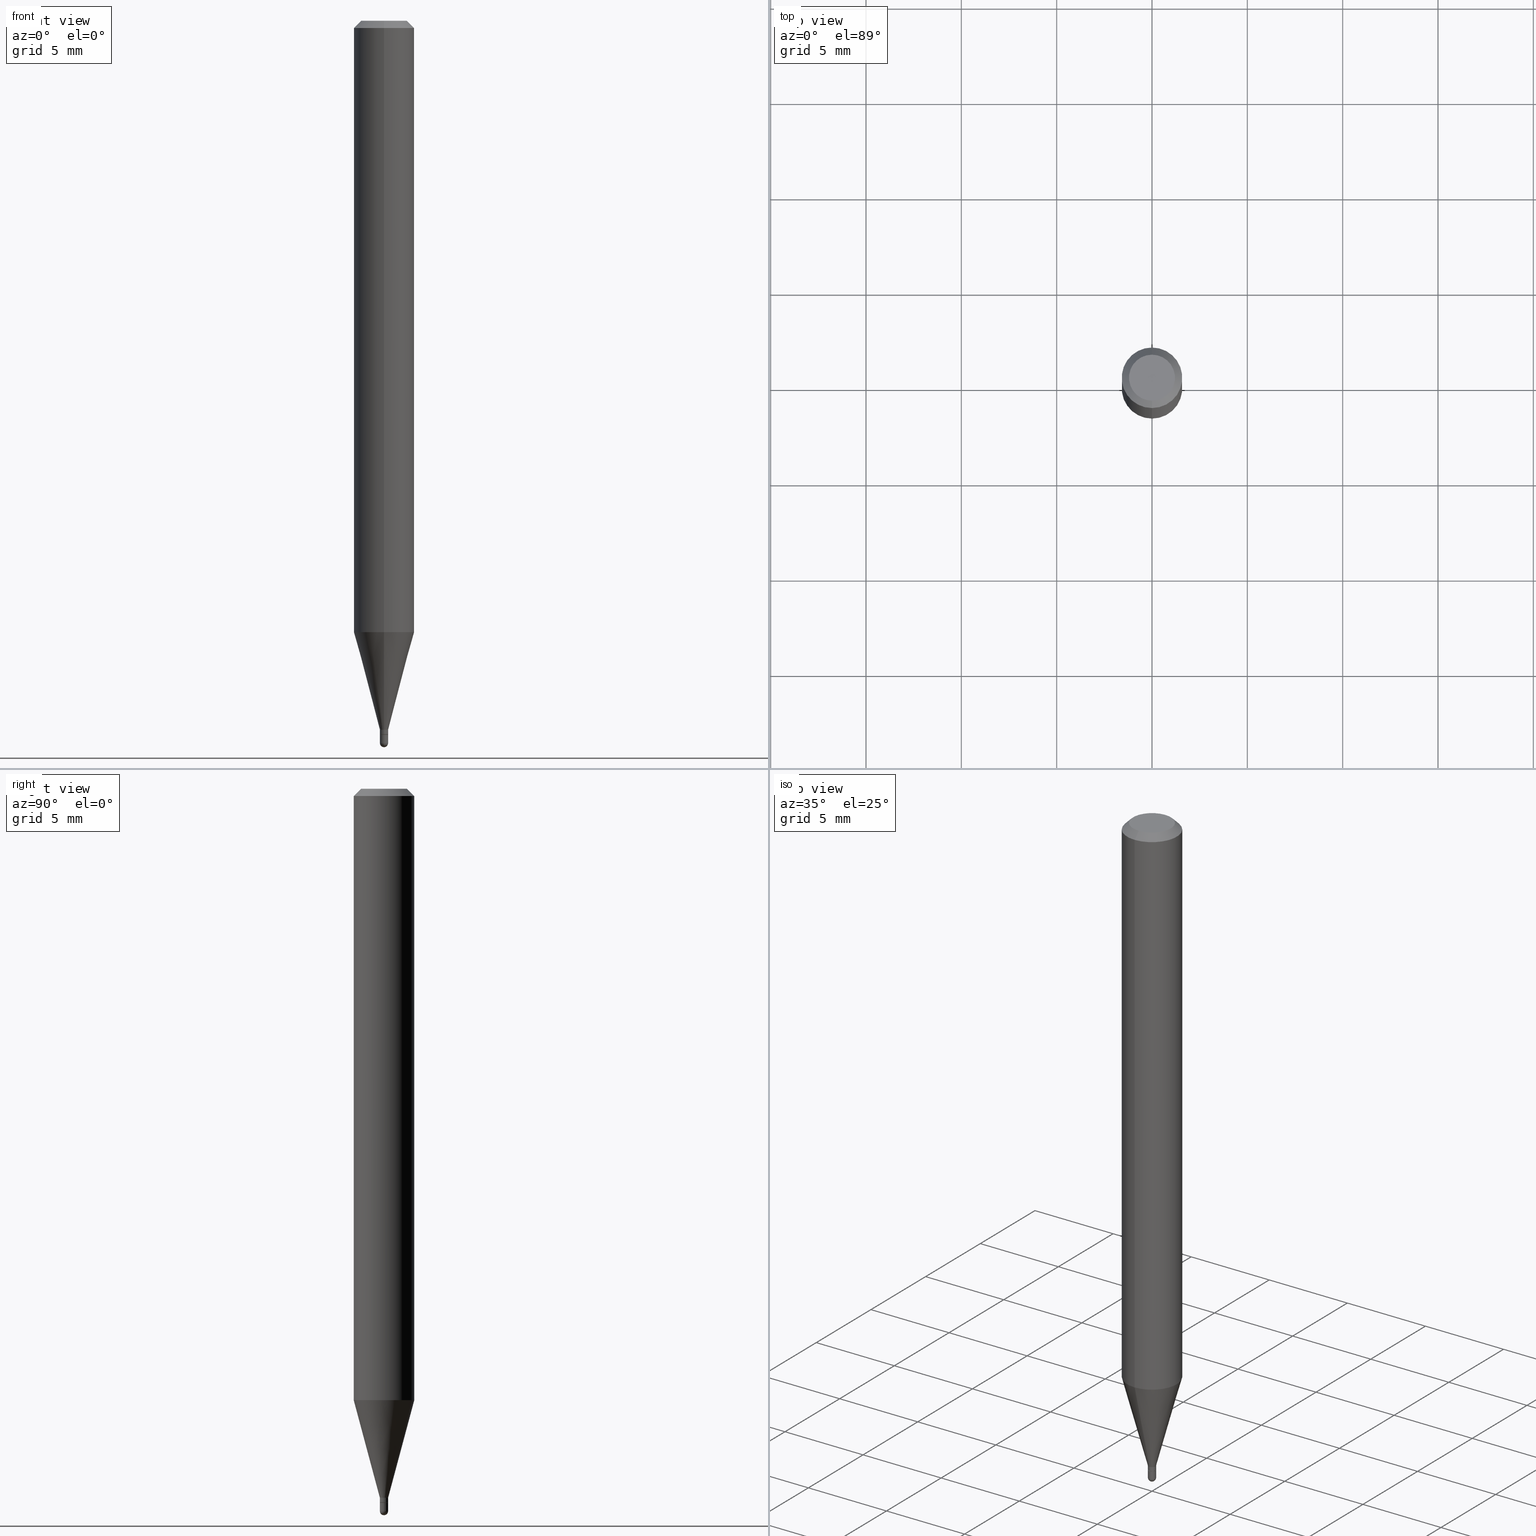
[diagram: canonical four-view strip — front | top / right | iso, engineering-drawing reading convention]
A machine part, canonical four-view strip (front | top / right | iso — engineering-drawing reading convention). The complete STEP part file that produces these views, byte-faithful:
ISO-10303-21;
HEADER;
FILE_DESCRIPTION (( 'STEP AP203' ),
    '1' );
FILE_NAME ('03078.STEP',
    '2024-03-08T18:07:03',
    ( '' ),
    ( '' ),
    'SwSTEP 2.0',
    'SolidWorks 2023',
    '' );
FILE_SCHEMA (( 'CONFIG_CONTROL_DESIGN' ));
ENDSEC;

DATA;
#1 = DIRECTION ( 'NONE',  ( -6.982962677686265133E-15, -1.000000000000000000, 3.491470586945817923E-15 ) ) ;
#2 = CARTESIAN_POINT ( 'NONE',  ( 3.668214471292309505E-31, -5.237205880418643043E-17, -0.01499999999999976179 ) ) ;
#3 = DIRECTION ( 'NONE',  ( -2.445476314194912029E-29, 3.491470586945817923E-15, 1.000000000000000000 ) ) ;
#4 = LOCAL_TIME ( 13, 7, 3.000000000000000000, #294 ) ;
#5 = ORIENTED_EDGE ( 'NONE', *, *, #174, .F. ) ;
#6 = DIRECTION ( 'NONE',  ( 6.982962677686265922E-15, 1.000000000000000000, -3.483106191921935554E-15 ) ) ;
#7 = VERTEX_POINT ( 'NONE', #271 ) ;
#8 = CIRCLE ( 'NONE', #301, 0.008500000000000002345 ) ;
#9 = AXIS2_PLACEMENT_3D ( 'NONE', #436, #85, #240 ) ;
#10 = FACE_OUTER_BOUND ( 'NONE', #99, .T. ) ;
#11 = FACE_OUTER_BOUND ( 'NONE', #129, .T. ) ;
#12 = ORIENTED_EDGE ( 'NONE', *, *, #153, .F. ) ;
#13 = EDGE_CURVE ( 'NONE', #355, #496, #508, .T. ) ;
#14 = DIRECTION ( 'NONE',  ( -6.982962677686265922E-15, -1.000000000000000000, 3.483106191921935554E-15 ) ) ;
#15 = CARTESIAN_POINT ( 'NONE',  ( 3.604632087123300502E-29, -5.146427645158135766E-15, -1.474000000000000199 ) ) ;
#16 = VECTOR ( 'NONE', #409, 39.37007874015748143 ) ;
#17 = CONICAL_SURFACE ( 'NONE', #493, 0.06250000000000000000, 0.7853981633974483900 ) ;
#18 = DIRECTION ( 'NONE',  ( 1.000000000000000000, -6.982962677686265922E-15, 4.883557194083112901E-29 ) ) ;
#19 = DIRECTION ( 'NONE',  ( -2.445476314194912029E-29, 3.491470586945817923E-15, 1.000000000000000000 ) ) ;
#20 = VECTOR ( 'NONE', #334, 39.37007874015747433 ) ;
#21 = AXIS2_PLACEMENT_3D ( 'NONE', #482, #248, #182 ) ;
#22 = DIRECTION ( 'NONE',  ( -2.445476314194912029E-29, 3.491470586945817529E-15, 1.000000000000000000 ) ) ;
#23 = ORIENTED_EDGE ( 'NONE', *, *, #13, .T. ) ;
#24 = COORDINATED_UNIVERSAL_TIME_OFFSET ( 5, 0, .BEHIND. ) ;
#25 = DIRECTION ( 'NONE',  ( -2.445476314194912029E-29, 3.491470586945817923E-15, 1.000000000000000000 ) ) ;
#26 = DIRECTION ( 'NONE',  ( 0.000000000000000000, 0.000000000000000000, 1.000000000000000000 ) ) ;
#27 =( GEOMETRIC_REPRESENTATION_CONTEXT ( 3 ) GLOBAL_UNCERTAINTY_ASSIGNED_CONTEXT ( ( #60 ) ) GLOBAL_UNIT_ASSIGNED_CONTEXT ( ( #411, #177, #254 ) ) REPRESENTATION_CONTEXT ( 'NONE', 'WORKASPACE' ) );
#28 = ADVANCED_FACE ( 'NONE', ( #241 ), #324, .T. ) ;
#29 = COORDINATED_UNIVERSAL_TIME_OFFSET ( 5, 0, .BEHIND. ) ;
#30 = CIRCLE ( 'NONE', #44, 0.06250000000000000000 ) ;
#31 = AXIS2_PLACEMENT_3D ( 'NONE', #181, #214, #14 ) ;
#32 = EDGE_CURVE ( 'NONE', #57, #314, #234, .T. ) ;
#33 = FACE_OUTER_BOUND ( 'NONE', #39, .T. ) ;
#34 = DIRECTION ( 'NONE',  ( -6.982962677686265133E-15, -1.000000000000000000, 3.491470586945817923E-15 ) ) ;
#35 = CC_DESIGN_DATE_AND_TIME_ASSIGNMENT ( #151, #227, ( #41 ) ) ;
#36 = CIRCLE ( 'NONE', #478, 0.008499999999999924283 ) ;
#37 = CYLINDRICAL_SURFACE ( 'NONE', #367, 0.06250000000000000000 ) ;
#38 = EDGE_CURVE ( 'NONE', #355, #96, #8, .T. ) ;
#39 = EDGE_LOOP ( 'NONE', ( #158, #403, #466, #376 ) ) ;
#40 = CARTESIAN_POINT ( 'NONE',  ( -5.935518276033272371E-17, -0.008499999999999924283, 2.967749998903918699E-17 ) ) ;
#41 = SECURITY_CLASSIFICATION ( '', '', #185 ) ;
#42 = ORIENTED_EDGE ( 'NONE', *, *, #332, .F. ) ;
#43 = FACE_OUTER_BOUND ( 'NONE', #474, .T. ) ;
#44 = AXIS2_PLACEMENT_3D ( 'NONE', #410, #19, #382 ) ;
#45 = CARTESIAN_POINT ( 'NONE',  ( 0.000000000000000000, 0.000000000000000000, 0.000000000000000000 ) ) ;
#46 = LINE ( 'NONE', #206, #344 ) ;
#47 = ORIENTED_EDGE ( 'NONE', *, *, #50, .F. ) ;
#48 = ADVANCED_FACE ( 'NONE', ( #444 ), #92, .T. ) ;
#49 = DIRECTION ( 'NONE',  ( -6.982962677686265922E-15, -1.000000000000000000, 4.370956789862821150E-15 ) ) ;
#50 = EDGE_CURVE ( 'NONE', #62, #496, #244, .T. ) ;
#51 = ORIENTED_EDGE ( 'NONE', *, *, #332, .T. ) ;
#52 = LINE ( 'NONE', #361, #89 ) ;
#53 = LINE ( 'NONE', #178, #20 ) ;
#54 = CIRCLE ( 'NONE', #21, 0.008500000000000002345 ) ;
#55 = FACE_OUTER_BOUND ( 'NONE', #164, .T. ) ;
#56 = DIRECTION ( 'NONE',  ( 1.000000000000000000, -7.105427357601001070E-15, 4.926315508542082329E-29 ) ) ;
#57 = VERTEX_POINT ( 'NONE', #104 ) ;
#58 = ORIENTED_EDGE ( 'NONE', *, *, #191, .F. ) ;
#59 = DIRECTION ( 'NONE',  ( -6.982962677686266711E-15, -1.000000000000000000, 0.000000000000000000 ) ) ;
#60 = UNCERTAINTY_MEASURE_WITH_UNIT (LENGTH_MEASURE( 1.000000000000000082E-05 ), #411, 'distance_accuracy_value', 'NONE');
#61 = DIRECTION ( 'NONE',  ( -2.445468806185136597E-29, 3.491481338843145583E-15, 1.000000000000000000 ) ) ;
#62 = VERTEX_POINT ( 'NONE', #423 ) ;
#63 = APPROVAL ( #500, 'UNSPECIFIED' ) ;
#64 = DATE_AND_TIME ( #74, #106 ) ;
#65 = DIRECTION ( 'NONE',  ( 2.438088387897960049E-29, -3.491481338843145188E-15, -1.000000000000000000 ) ) ;
#66 = APPROVAL_DATE_TIME ( #419, #329 ) ;
#67 = CONICAL_SURFACE ( 'NONE', #348, 0.06250000000000000000, 0.7853981633974483900 ) ;
#68 = DIRECTION ( 'NONE',  ( -1.000000000000000000, 6.982962677686265922E-15, -4.876176775795935793E-29 ) ) ;
#69 = CALENDAR_DATE ( 2024, 8, 3 ) ;
#70 = EDGE_CURVE ( 'NONE', #96, #328, #489, .T. ) ;
#71 = MANIFOLD_SOLID_BREP ( 'Body-Move/Copy2[1]', #154 ) ;
#72 = ORIENTED_EDGE ( 'NONE', *, *, #437, .T. ) ;
#73 = CALENDAR_DATE ( 2024, 8, 3 ) ;
#74 = CALENDAR_DATE ( 2024, 8, 3 ) ;
#75 = ADVANCED_FACE ( 'NONE', ( #11 ), #173, .T. ) ;
#76 = DIRECTION ( 'NONE',  ( -2.445476314194912029E-29, 3.491470586945817923E-15, 1.000000000000000000 ) ) ;
#77 = CC_DESIGN_PERSON_AND_ORGANIZATION_ASSIGNMENT ( #421, #456, ( #501 ) ) ;
#78 = DIRECTION ( 'NONE',  ( -1.000000000000000000, 6.982962677686265922E-15, -4.883557194083112340E-29 ) ) ;
#79 = LOCAL_TIME ( 13, 7, 3.000000000000000000, #257 ) ;
#80 = CARTESIAN_POINT ( 'NONE',  ( -4.364351673553606573E-16, -0.06250000000000439926, -1.262469256391280714 ) ) ;
#81 = CIRCLE ( 'NONE', #292, 0.008000000000000000167 ) ;
#82 = CARTESIAN_POINT ( 'NONE',  ( 0.000000000000000000, 0.000000000000000000, 0.000000000000000000 ) ) ;
#83 = ORIENTED_EDGE ( 'NONE', *, *, #303, .T. ) ;
#84 = VERTEX_POINT ( 'NONE', #256 ) ;
#85 = DIRECTION ( 'NONE',  ( -2.445476314194912029E-29, 3.491470586945817923E-15, 1.000000000000000000 ) ) ;
#86 = AXIS2_PLACEMENT_3D ( 'NONE', #366, #247, #326 ) ;
#87 = ORIENTED_EDGE ( 'NONE', *, *, #200, .F. ) ;
#88 = AXIS2_PLACEMENT_3D ( 'NONE', #338, #61, #449 ) ;
#89 = VECTOR ( 'NONE', #330, 39.37007874015749564 ) ;
#90 = ORIENTED_EDGE ( 'NONE', *, *, #13, .F. ) ;
#91 = FACE_OUTER_BOUND ( 'NONE', #415, .T. ) ;
#92 = CYLINDRICAL_SURFACE ( 'NONE', #432, 0.008500000000000002345 ) ;
#93 = FACE_OUTER_BOUND ( 'NONE', #196, .T. ) ;
#94 = ORIENTED_EDGE ( 'NONE', *, *, #495, .T. ) ;
#95 = CARTESIAN_POINT ( 'NONE',  ( 0.000000000000000000, 0.000000000000000000, 0.000000000000000000 ) ) ;
#96 = VERTEX_POINT ( 'NONE', #341 ) ;
#97 = AXIS2_PLACEMENT_3D ( 'NONE', #270, #76, #34 ) ;
#98 = DIRECTION ( 'NONE',  ( 1.000000000000000000, -6.982962677686273021E-15, 0.000000000000000000 ) ) ;
#99 = EDGE_LOOP ( 'NONE', ( #12, #372, #197, #483 ) ) ;
#100 = FACE_OUTER_BOUND ( 'NONE', #239, .T. ) ;
#101 = EDGE_CURVE ( 'NONE', #274, #291, #30, .T. ) ;
#102 = ORIENTED_EDGE ( 'NONE', *, *, #285, .T. ) ;
#103 = PERSON_AND_ORGANIZATION ( #215, #287 ) ;
#104 = CARTESIAN_POINT ( 'NONE',  ( 4.440892098500932831E-16, 0.06249999999999557992, -1.262469256391281158 ) ) ;
#105 = ADVANCED_FACE ( 'NONE', ( #451 ), #218, .F. ) ;
#106 = LOCAL_TIME ( 13, 7, 3.000000000000000000, #24 ) ;
#107 = APPLICATION_CONTEXT ( 'configuration controlled 3d designs of mechanical parts and assemblies' ) ;
#108 = DIRECTION ( 'NONE',  ( -2.445468806185136597E-29, 3.491481338843145583E-15, 1.000000000000000000 ) ) ;
#109 = ORIENTED_EDGE ( 'NONE', *, *, #385, .F. ) ;
#110 = PERSON_AND_ORGANIZATION_ROLE ( 'creator' ) ;
#111 = CIRCLE ( 'NONE', #229, 0.008499999999999827138 ) ;
#112 = EDGE_CURVE ( 'NONE', #335, #355, #54, .T. ) ;
#113 = CARTESIAN_POINT ( 'NONE',  ( 0.000000000000000000, 0.000000000000000000, 0.000000000000000000 ) ) ;
#114 = MECHANICAL_CONTEXT ( 'NONE', #424, 'mechanical' ) ;
#115 = AXIS2_PLACEMENT_3D ( 'NONE', #138, #65, #68 ) ;
#116 = CYLINDRICAL_SURFACE ( 'NONE', #387, 0.06250000000000000000 ) ;
#117 = DIRECTION ( 'NONE',  ( -2.445476314194912029E-29, 3.491470586945817923E-15, 1.000000000000000000 ) ) ;
#118 = DIRECTION ( 'NONE',  ( -4.851104656540964275E-15, -0.7071067811865500152, -0.7071067811865450192 ) ) ;
#119 = AXIS2_PLACEMENT_3D ( 'NONE', #113, #26, #342 ) ;
#120 = CARTESIAN_POINT ( 'NONE',  ( -5.586370142145408225E-17, -0.008000000000005147091, -1.474000000000000199 ) ) ;
#121 = VECTOR ( 'NONE', #22, 39.37007874015748143 ) ;
#122 = AXIS2_PLACEMENT_3D ( 'NONE', #487, #375, #293 ) ;
#123 = ORIENTED_EDGE ( 'NONE', *, *, #360, .F. ) ;
#124 = ORIENTED_EDGE ( 'NONE', *, *, #311, .F. ) ;
#125 = CARTESIAN_POINT ( 'NONE',  ( -5.935518276029691682E-17, -0.008500000000005034778, -1.463999999999999968 ) ) ;
#126 = ORIENTED_EDGE ( 'NONE', *, *, #101, .F. ) ;
#127 = CARTESIAN_POINT ( 'NONE',  ( 3.668214471292309505E-31, -5.237205880418643043E-17, -0.01499999999999976179 ) ) ;
#128 = EDGE_CURVE ( 'NONE', #502, #370, #494, .T. ) ;
#129 = EDGE_LOOP ( 'NONE', ( #124, #199, #318, #205 ) ) ;
#130 = AXIS2_PLACEMENT_3D ( 'NONE', #203, #18, #243 ) ;
#131 = DIRECTION ( 'NONE',  ( -2.445468806185136597E-29, 3.491481338843145583E-15, 1.000000000000000000 ) ) ;
#132 = DIRECTION ( 'NONE',  ( -2.445476314194912029E-29, 3.491470586945817529E-15, 1.000000000000000000 ) ) ;
#133 = EDGE_LOOP ( 'NONE', ( #245, #83, #5, #249 ) ) ;
#134 = EDGE_CURVE ( 'NONE', #370, #57, #53, .T. ) ;
#135 = CARTESIAN_POINT ( 'NONE',  ( 3.647416724425131194E-29, -5.207544416884551827E-15, -1.491500000000000270 ) ) ;
#136 = DIRECTION ( 'NONE',  ( -2.445476314194912029E-29, 3.491470586945817923E-15, 1.000000000000000000 ) ) ;
#137 = DIRECTION ( 'NONE',  ( -6.982962677686265922E-15, -1.000000000000000000, 3.491470586945817529E-15 ) ) ;
#138 = CARTESIAN_POINT ( 'NONE',  ( 5.935518276036931946E-17, 0.008499999999994853686, -1.474000000000000199 ) ) ;
#139 = ORIENTED_EDGE ( 'NONE', *, *, #112, .T. ) ;
#140 = ORIENTED_EDGE ( 'NONE', *, *, #389, .F. ) ;
#141 = CIRCLE ( 'NONE', #31, 0.06250000000000000000 ) ;
#142 = CALENDAR_DATE ( 2024, 8, 3 ) ;
#143 = EDGE_LOOP ( 'NONE', ( #139, #23, #47, #109, #465 ) ) ;
#144 = CARTESIAN_POINT ( 'NONE',  ( -3.773273898774340269E-16, -0.04749999999999999362, 4.053329848526901620E-16 ) ) ;
#145 = ORIENTED_EDGE ( 'NONE', *, *, #134, .F. ) ;
#146 = EDGE_CURVE ( 'NONE', #170, #84, #209, .T. ) ;
#147 = DIRECTION ( 'NONE',  ( -6.982962677686266711E-15, -1.000000000000000000, 0.000000000000000000 ) ) ;
#148 = CARTESIAN_POINT ( 'NONE',  ( 3.646689833079329078E-29, -5.208585366663827303E-15, -1.491500000000000270 ) ) ;
#149 = AXIS2_PLACEMENT_3D ( 'NONE', #420, #211, #369 ) ;
#150 = APPROVAL_STATUS ( 'not_yet_approved' ) ;
#151 = DATE_AND_TIME ( #73, #353 ) ;
#152 = LOCAL_TIME ( 13, 7, 3.000000000000000000, #383 ) ;
#153 = EDGE_CURVE ( 'NONE', #446, #335, #460, .T. ) ;
#154 = CLOSED_SHELL ( 'NONE', ( #48, #75, #105, #381, #325 ) ) ;
#155 = DIRECTION ( 'NONE',  ( 1.000000000000000000, -6.982962677686274599E-15, 0.000000000000000000 ) ) ;
#156 = DIRECTION ( 'NONE',  ( -6.982962677686266711E-15, -1.000000000000000000, 0.000000000000000000 ) ) ;
#157 = DIRECTION ( 'NONE',  ( -2.445476314194912029E-29, 3.491470586945817923E-15, 1.000000000000000000 ) ) ;
#158 = ORIENTED_EDGE ( 'NONE', *, *, #458, .T. ) ;
#159 = CARTESIAN_POINT ( 'NONE',  ( -0.008500000000000002345, -5.116597822630066156E-15, -1.491500000000000270 ) ) ;
#160 = CONICAL_SURFACE ( 'NONE', #302, 0.008000000000000000167, 0.7853981633974739252 ) ;
#161 = VECTOR ( 'NONE', #195, 39.37007874015748143 ) ;
#162 = VERTEX_POINT ( 'NONE', #453 ) ;
#163 = DIRECTION ( 'NONE',  ( -6.982962677686266711E-15, -1.000000000000000000, 0.000000000000000000 ) ) ;
#164 = EDGE_LOOP ( 'NONE', ( #213, #473, #438, #58 ) ) ;
#165 = SPHERICAL_SURFACE ( 'NONE', #130, 0.008499999999999827138 ) ;
#166 = CC_DESIGN_DATE_AND_TIME_ASSIGNMENT ( #64, #259, ( #345 ) ) ;
#167 = DIRECTION ( 'NONE',  ( -6.982962677686265922E-15, -1.000000000000000000, 4.370956789862821150E-15 ) ) ;
#168 = DIRECTION ( 'NONE',  ( -2.445476314194912029E-29, 3.491470586945817923E-15, 1.000000000000000000 ) ) ;
#169 = AXIS2_PLACEMENT_3D ( 'NONE', #390, #117, #433 ) ;
#170 = VERTEX_POINT ( 'NONE', #144 ) ;
#171 = ORIENTED_EDGE ( 'NONE', *, *, #360, .T. ) ;
#172 = DIRECTION ( 'NONE',  ( -2.445476314194912029E-29, 3.491470586945817529E-15, 1.000000000000000000 ) ) ;
#173 = SPHERICAL_SURFACE ( 'NONE', #149, 0.008499999999999827138 ) ;
#174 = EDGE_CURVE ( 'NONE', #7, #502, #412, .T. ) ;
#175 = EDGE_LOOP ( 'NONE', ( #90, #362, #246, #484, #396 ) ) ;
#176 = ADVANCED_FACE ( 'NONE', ( #459 ), #160, .T. ) ;
#177 =( NAMED_UNIT ( * ) PLANE_ANGLE_UNIT ( ) SI_UNIT ( $, .RADIAN. ) );
#178 = CARTESIAN_POINT ( 'NONE',  ( 6.039613253964376003E-17, 0.008499999999994812053, -1.463999999999999968 ) ) ;
#179 = APPROVAL_PERSON_ORGANIZATION ( #336, #63, #488 ) ;
#180 = ORIENTED_EDGE ( 'NONE', *, *, #146, .T. ) ;
#181 = CARTESIAN_POINT ( 'NONE',  ( 3.668214471292309505E-31, -5.237205880418643043E-17, -0.01499999999999976179 ) ) ;
#182 = DIRECTION ( 'NONE',  ( 1.000000000000000000, -6.982962677686273021E-15, 0.000000000000000000 ) ) ;
#183 = AXIS2_PLACEMENT_3D ( 'NONE', #414, #222, #380 ) ;
#184 = CARTESIAN_POINT ( 'NONE',  ( 3.603409348966203103E-29, -5.144681909864663281E-15, -1.473500000000000254 ) ) ;
#185 = SECURITY_CLASSIFICATION_LEVEL ( 'unclassified' ) ;
#186 = DIRECTION ( 'NONE',  ( -6.982962677686266711E-15, -1.000000000000000000, 0.000000000000000000 ) ) ;
#187 = CC_DESIGN_PERSON_AND_ORGANIZATION_ASSIGNMENT ( #425, #110, ( #345 ) ) ;
#188 = PERSON_AND_ORGANIZATION ( #215, #287 ) ;
#189 = AXIS2_PLACEMENT_3D ( 'NONE', #283, #168, #59 ) ;
#190 = ORIENTED_EDGE ( 'NONE', *, *, #437, .F. ) ;
#191 = EDGE_CURVE ( 'NONE', #84, #274, #260, .T. ) ;
#192 = DIRECTION ( 'NONE',  ( -6.982962677686265922E-15, -1.000000000000000000, 3.491470586945817529E-15 ) ) ;
#193 = CIRCLE ( 'NONE', #392, 0.008000000000000000167 ) ;
#194 = DIRECTION ( 'NONE',  ( -6.982962677686266711E-15, -1.000000000000000000, 0.000000000000000000 ) ) ;
#195 = DIRECTION ( 'NONE',  ( -4.937700262164674260E-15, -0.7071067811865632269, 0.7071067811865319186 ) ) ;
#196 = EDGE_LOOP ( 'NONE', ( #401, #87 ) ) ;
#197 = ORIENTED_EDGE ( 'NONE', *, *, #38, .F. ) ;
#198 = DIRECTION ( 'NONE',  ( -2.445476314194912029E-29, 3.491470586945817529E-15, 1.000000000000000000 ) ) ;
#199 = ORIENTED_EDGE ( 'NONE', *, *, #153, .T. ) ;
#200 = EDGE_CURVE ( 'NONE', #435, #162, #81, .T. ) ;
#201 = FACE_OUTER_BOUND ( 'NONE', #480, .T. ) ;
#202 = DIRECTION ( 'NONE',  ( -2.445476314194912029E-29, 3.491470586945817923E-15, 1.000000000000000000 ) ) ;
#203 = CARTESIAN_POINT ( 'NONE',  ( 3.646689833079329078E-29, -5.208585366663827303E-15, -1.491500000000000270 ) ) ;
#204 = ORIENTED_EDGE ( 'NONE', *, *, #101, .T. ) ;
#205 = ORIENTED_EDGE ( 'NONE', *, *, #70, .F. ) ;
#206 = CARTESIAN_POINT ( 'NONE',  ( 0.008500000000000002345, -5.935518276033327838E-17, 4.144750259426545879E-31 ) ) ;
#207 = EDGE_LOOP ( 'NONE', ( #171, #180 ) ) ;
#208 = DIRECTION ( 'NONE',  ( 2.445476314194912029E-29, -3.491470586945817923E-15, -1.000000000000000000 ) ) ;
#209 = CIRCLE ( 'NONE', #183, 0.04749999999999999362 ) ;
#210 = AXIS2_PLACEMENT_3D ( 'NONE', #503, #427, #194 ) ;
#211 = DIRECTION ( 'NONE',  ( 1.000000000000000000, -6.982962677686265922E-15, 4.883557194083112901E-29 ) ) ;
#212 = ADVANCED_FACE ( 'NONE', ( #448 ), #253, .F. ) ;
#213 = ORIENTED_EDGE ( 'NONE', *, *, #146, .F. ) ;
#214 = DIRECTION ( 'NONE',  ( -2.445476314194912029E-29, 3.491470586945817923E-15, 1.000000000000000000 ) ) ;
#215 = PERSON ( 'UNSPECIFIED', 'UNSPECIFIED', 'UNSPECIFIED', ('UNSPECIFIED'), ('UNSPECIFIED'), ('UNSPECIFIED') ) ;
#216 = APPROVAL ( #386, 'UNSPECIFIED' ) ;
#217 = FACE_OUTER_BOUND ( 'NONE', #399, .T. ) ;
#218 = PLANE ( 'NONE',  #115 ) ;
#219 = ORIENTED_EDGE ( 'NONE', *, *, #128, .F. ) ;
#220 = ORIENTED_EDGE ( 'NONE', *, *, #32, .F. ) ;
#221 = PERSON_AND_ORGANIZATION_ROLE ( 'design_supplier' ) ;
#222 = DIRECTION ( 'NONE',  ( -2.445476314194912029E-29, 3.491470586945817923E-15, 1.000000000000000000 ) ) ;
#223 = CONICAL_SURFACE ( 'NONE', #169, 0.008000000000000000167, 0.7853981633974739252 ) ;
#224 = APPLICATION_PROTOCOL_DEFINITION ( 'international standard', 'config_control_design', 1994, #424 ) ;
#225 = CC_DESIGN_PERSON_AND_ORGANIZATION_ASSIGNMENT ( #228, #262, ( #41 ) ) ;
#226 = DIRECTION ( 'NONE',  ( 4.937700262164548042E-15, 0.7071067811865451302, -0.7071067811865499042 ) ) ;
#227 = DATE_TIME_ROLE ( 'classification_date' ) ;
#228 = PERSON_AND_ORGANIZATION ( #215, #287 ) ;
#229 = AXIS2_PLACEMENT_3D ( 'NONE', #265, #78, #156 ) ;
#230 = MANIFOLD_SOLID_BREP ( 'Body-Move/Copy2[2]', #343 ) ;
#231 = CARTESIAN_POINT ( 'NONE',  ( 3.603409348966203103E-29, -5.144681909864663281E-15, -1.473500000000000254 ) ) ;
#232 = ADVANCED_FACE ( 'NONE', ( #100 ), #418, .T. ) ;
#233 = CARTESIAN_POINT ( 'NONE',  ( 3.604632087123300502E-29, -5.146427645158135766E-15, -1.474000000000000199 ) ) ;
#234 = CIRCLE ( 'NONE', #337, 0.06250000000000000000 ) ;
#235 = CIRCLE ( 'NONE', #9, 0.04749999999999999362 ) ;
#236 = DIRECTION ( 'NONE',  ( 1.000000000000000000, -6.982962677686265922E-15, 4.876176775795935232E-29 ) ) ;
#237 = DIRECTION ( 'NONE',  ( -2.445476314194912029E-29, 3.491470586945817923E-15, 1.000000000000000000 ) ) ;
#238 = ADVANCED_FACE ( 'NONE', ( #201 ), #116, .T. ) ;
#239 = EDGE_LOOP ( 'NONE', ( #219, #417, #277, #42 ) ) ;
#240 = DIRECTION ( 'NONE',  ( -6.982962677686266711E-15, -1.000000000000000000, 3.491470586945817134E-15 ) ) ;
#241 = FACE_OUTER_BOUND ( 'NONE', #312, .T. ) ;
#242 = EDGE_CURVE ( 'NONE', #170, #291, #309, .T. ) ;
#243 = DIRECTION ( 'NONE',  ( -6.982962677686265922E-15, -1.000000000000000000, 0.000000000000000000 ) ) ;
#244 = CIRCLE ( 'NONE', #88, 0.008500000000000000611 ) ;
#245 = ORIENTED_EDGE ( 'NONE', *, *, #263, .T. ) ;
#246 = ORIENTED_EDGE ( 'NONE', *, *, #70, .T. ) ;
#247 = DIRECTION ( 'NONE',  ( -2.445476314194912029E-29, 3.491470586945817923E-15, 1.000000000000000000 ) ) ;
#248 = DIRECTION ( 'NONE',  ( -2.445468806185136597E-29, 3.491481338843145583E-15, 1.000000000000000000 ) ) ;
#249 = ORIENTED_EDGE ( 'NONE', *, *, #285, .F. ) ;
#250 = LINE ( 'NONE', #481, #16 ) ;
#251 = AXIS2_PLACEMENT_3D ( 'NONE', #296, #108, #490 ) ;
#252 = AXIS2_PLACEMENT_3D ( 'NONE', #135, #276, #98 ) ;
#253 = PLANE ( 'NONE',  #122 ) ;
#254 =( NAMED_UNIT ( * ) SI_UNIT ( $, .STERADIAN. ) SOLID_ANGLE_UNIT ( ) );
#255 = ADVANCED_FACE ( 'NONE', ( #43 ), #505, .T. ) ;
#256 = CARTESIAN_POINT ( 'NONE',  ( 3.840629472727447874E-16, 0.04749999999999999362, 7.364327909283752044E-17 ) ) ;
#257 = COORDINATED_UNIVERSAL_TIME_OFFSET ( 5, 0, .BEHIND. ) ;
#258 = DIRECTION ( 'NONE',  ( 1.000000000000000000, -6.982962677686265922E-15, 4.876176775795935232E-29 ) ) ;
#259 = DATE_TIME_ROLE ( 'creation_date' ) ;
#260 = LINE ( 'NONE', #339, #442 ) ;
#261 = APPLICATION_PROTOCOL_DEFINITION ( 'international standard', 'config_control_design', 1994, #107 ) ;
#262 = PERSON_AND_ORGANIZATION_ROLE ( 'classification_officer' ) ;
#263 = EDGE_CURVE ( 'NONE', #162, #435, #193, .T. ) ;
#264 = CARTESIAN_POINT ( 'NONE',  ( 0.000000000000000000, 0.000000000000000000, 0.000000000000000000 ) ) ;
#265 = CARTESIAN_POINT ( 'NONE',  ( 3.646689833079329078E-29, -5.208585366663827303E-15, -1.491500000000000270 ) ) ;
#266 = EDGE_CURVE ( 'NONE', #502, #7, #36, .T. ) ;
#267 = DIRECTION ( 'NONE',  ( -2.445468806185136597E-29, 3.491481338843145583E-15, 1.000000000000000000 ) ) ;
#268 = AXIS2_PLACEMENT_3D ( 'NONE', #45, #202, #1 ) ;
#269 = AXIS2_PLACEMENT_3D ( 'NONE', #350, #157, #469 ) ;
#270 = CARTESIAN_POINT ( 'NONE',  ( 0.000000000000000000, 0.000000000000000000, 0.000000000000000000 ) ) ;
#271 = CARTESIAN_POINT ( 'NONE',  ( -5.935518276029690450E-17, -0.008500000000005098963, -1.473500000000000254 ) ) ;
#272 = ORIENTED_EDGE ( 'NONE', *, *, #458, .F. ) ;
#273 = DIRECTION ( 'NONE',  ( -2.445476314194912029E-29, 3.491470586945817923E-15, 1.000000000000000000 ) ) ;
#274 = VERTEX_POINT ( 'NONE', #388 ) ;
#275 = APPROVAL_PERSON_ORGANIZATION ( #340, #216, #306 ) ;
#276 = DIRECTION ( 'NONE',  ( -2.445468806185136597E-29, 3.491481338843145583E-15, 1.000000000000000000 ) ) ;
#277 = ORIENTED_EDGE ( 'NONE', *, *, #351, .T. ) ;
#278 = LENGTH_MEASURE_WITH_UNIT ( LENGTH_MEASURE( 0.02539999999999999897 ), #475 );
#279 = VECTOR ( 'NONE', #198, 39.37007874015748143 ) ;
#280 = DIRECTION ( 'NONE',  ( 1.000000000000000000, -6.982962677686273021E-15, 0.000000000000000000 ) ) ;
#281 = ADVANCED_FACE ( 'NONE', ( #33 ), #37, .T. ) ;
#282 = EDGE_CURVE ( 'NONE', #496, #62, #327, .T. ) ;
#283 = CARTESIAN_POINT ( 'NONE',  ( 3.580177323981351404E-29, -5.111512939288677386E-15, -1.463999999999999968 ) ) ;
#284 = ORIENTED_EDGE ( 'NONE', *, *, #351, .F. ) ;
#285 = EDGE_CURVE ( 'NONE', #162, #7, #349, .T. ) ;
#286 = CARTESIAN_POINT ( 'NONE',  ( -0.008500000000000000611, -5.116597822630066156E-15, -1.474000000000000199 ) ) ;
#287 = ORGANIZATION ( 'UNSPECIFIED', 'UNSPECIFIED', '' ) ;
#288 = DESIGN_CONTEXT ( 'detailed design', #107, 'design' ) ;
#289 = DIRECTION ( 'NONE',  ( -6.982962677686266711E-15, -1.000000000000000000, 0.000000000000000000 ) ) ;
#290 = ORIENTED_EDGE ( 'NONE', *, *, #32, .T. ) ;
#291 = VERTEX_POINT ( 'NONE', #507 ) ;
#292 = AXIS2_PLACEMENT_3D ( 'NONE', #15, #25, #186 ) ;
#293 = DIRECTION ( 'NONE',  ( 6.982962677686265922E-15, 1.000000000000000000, -3.491470586945817529E-15 ) ) ;
#294 = COORDINATED_UNIVERSAL_TIME_OFFSET ( 5, 0, .BEHIND. ) ;
#295 = ORIENTED_EDGE ( 'NONE', *, *, #50, .T. ) ;
#296 = CARTESIAN_POINT ( 'NONE',  ( 3.647416724425131194E-29, -5.207544416884551827E-15, -1.491500000000000270 ) ) ;
#297 = ORIENTED_EDGE ( 'NONE', *, *, #389, .T. ) ;
#298 = CARTESIAN_POINT ( 'NONE',  ( 6.039613253960796547E-17, 0.008499999999999924283, -2.967749998903918699E-17 ) ) ;
#299 = APPROVAL_DATE_TIME ( #497, #63 ) ;
#300 = DIRECTION ( 'NONE',  ( -2.445476314194912029E-29, 3.491470586945817923E-15, 1.000000000000000000 ) ) ;
#301 = AXIS2_PLACEMENT_3D ( 'NONE', #477, #131, #280 ) ;
#302 = AXIS2_PLACEMENT_3D ( 'NONE', #368, #136, #289 ) ;
#303 = EDGE_CURVE ( 'NONE', #435, #502, #320, .T. ) ;
#304 = CALENDAR_DATE ( 2024, 8, 3 ) ;
#305 = ADVANCED_FACE ( 'NONE', ( #429 ), #223, .T. ) ;
#306 = APPROVAL_ROLE ( '' ) ;
#307 = CONICAL_SURFACE ( 'NONE', #86, 0.008499999999999922548, 0.2617993877991501295 ) ;
#308 = CIRCLE ( 'NONE', #379, 0.06250000000000000000 ) ;
#309 = LINE ( 'NONE', #512, #422 ) ;
#310 = FACE_OUTER_BOUND ( 'NONE', #175, .T. ) ;
#311 = EDGE_CURVE ( 'NONE', #446, #96, #111, .T. ) ;
#312 = EDGE_LOOP ( 'NONE', ( #346, #352, #140, #284 ) ) ;
#313 = CARTESIAN_POINT ( 'NONE',  ( 0.000000000000000000, 0.000000000000000000, 0.000000000000000000 ) ) ;
#314 = VERTEX_POINT ( 'NONE', #80 ) ;
#315 = ORIENTED_EDGE ( 'NONE', *, *, #134, .T. ) ;
#316 = AXIS2_PLACEMENT_3D ( 'NONE', #364, #172, #137 ) ;
#317 = CARTESIAN_POINT ( 'NONE',  ( 6.039613253964436401E-17, 0.008499999999994706235, -1.491500000000000270 ) ) ;
#318 = ORIENTED_EDGE ( 'NONE', *, *, #394, .F. ) ;
#319 = EDGE_LOOP ( 'NONE', ( #395, #416, #102, #408 ) ) ;
#320 = LINE ( 'NONE', #461, #499 ) ;
#321 = EDGE_LOOP ( 'NONE', ( #295, #406 ) ) ;
#322 = ORIENTED_EDGE ( 'NONE', *, *, #242, .F. ) ;
#323 = DIRECTION ( 'NONE',  ( 6.982962677686265922E-15, 1.000000000000000000, -3.483106191921935554E-15 ) ) ;
#324 = CYLINDRICAL_SURFACE ( 'NONE', #268, 0.008499999999999924283 ) ;
#325 = ADVANCED_FACE ( 'NONE', ( #310 ), #463, .T. ) ;
#326 = DIRECTION ( 'NONE',  ( -6.982962677686266711E-15, -1.000000000000000000, 0.000000000000000000 ) ) ;
#327 = CIRCLE ( 'NONE', #454, 0.008500000000000000611 ) ;
#328 = VERTEX_POINT ( 'NONE', #393 ) ;
#329 = APPROVAL ( #150, 'UNSPECIFIED' ) ;
#330 = DIRECTION ( 'NONE',  ( -1.807323732225328562E-15, -0.2588190451025179639, 0.9659258262890689783 ) ) ;
#331 = DIRECTION ( 'NONE',  ( -2.445468806185136597E-29, 3.491481338843145583E-15, 1.000000000000000000 ) ) ;
#332 = EDGE_CURVE ( 'NONE', #370, #359, #357, .T. ) ;
#333 = CARTESIAN_POINT ( 'NONE',  ( 6.039613253964380934E-17, 0.008499999999994751337, -1.473500000000000254 ) ) ;
#334 = DIRECTION ( 'NONE',  ( 1.839019923739599526E-15, 0.2588190451025248473, 0.9659258262890673130 ) ) ;
#335 = VERTEX_POINT ( 'NONE', #317 ) ;
#336 = PERSON_AND_ORGANIZATION ( #215, #287 ) ;
#337 = AXIS2_PLACEMENT_3D ( 'NONE', #441, #3, #167 ) ;
#338 = CARTESIAN_POINT ( 'NONE',  ( 3.604621020316892110E-29, -5.146443493454796836E-15, -1.474000000000000199 ) ) ;
#339 = CARTESIAN_POINT ( 'NONE',  ( 4.364351673553919652E-16, 0.06249999999999995143, -0.01499999999999997863 ) ) ;
#340 = PERSON_AND_ORGANIZATION ( #215, #287 ) ;
#341 = CARTESIAN_POINT ( 'NONE',  ( -5.935518276029620192E-17, -0.008500000000005121514, -1.491500000000000270 ) ) ;
#342 = DIRECTION ( 'NONE',  ( 1.000000000000000000, 0.000000000000000000, 0.000000000000000000 ) ) ;
#343 = CLOSED_SHELL ( 'NONE', ( #28, #305, #472, #281, #476, #255, #238, #462, #212, #428, #176, #232 ) ) ;
#344 = VECTOR ( 'NONE', #443, 39.37007874015748143 ) ;
#345 = PRODUCT_DEFINITION ( 'UNKNOWN', '', #501, #288 ) ;
#346 = ORIENTED_EDGE ( 'NONE', *, *, #174, .T. ) ;
#347 = DIRECTION ( 'NONE',  ( -2.445468806185136597E-29, 3.491481338843145583E-15, 1.000000000000000000 ) ) ;
#348 = AXIS2_PLACEMENT_3D ( 'NONE', #127, #373, #6 ) ;
#349 = LINE ( 'NONE', #120, #161 ) ;
#350 = CARTESIAN_POINT ( 'NONE',  ( 3.580177323981351404E-29, -5.111512939288677386E-15, -1.463999999999999968 ) ) ;
#351 = EDGE_CURVE ( 'NONE', #7, #359, #397, .T. ) ;
#352 = ORIENTED_EDGE ( 'NONE', *, *, #128, .T. ) ;
#353 = LOCAL_TIME ( 13, 7, 3.000000000000000000, #29 ) ;
#354 = CARTESIAN_POINT ( 'NONE',  ( 3.604621020316892110E-29, -5.146443493454796836E-15, -1.474000000000000199 ) ) ;
#355 = VERTEX_POINT ( 'NONE', #159 ) ;
#356 = CC_DESIGN_PERSON_AND_ORGANIZATION_ASSIGNMENT ( #188, #426, ( #404 ) ) ;
#357 = CIRCLE ( 'NONE', #269, 0.008499999999999922548 ) ;
#358 = DIRECTION ( 'NONE',  ( -2.445476314194912029E-29, 3.491470586945817923E-15, 1.000000000000000000 ) ) ;
#359 = VERTEX_POINT ( 'NONE', #125 ) ;
#360 = EDGE_CURVE ( 'NONE', #84, #170, #235, .T. ) ;
#361 = CARTESIAN_POINT ( 'NONE',  ( -5.935518276029691682E-17, -0.008500000000005034778, -1.463999999999999968 ) ) ;
#362 = ORIENTED_EDGE ( 'NONE', *, *, #38, .T. ) ;
#363 = CC_DESIGN_APPROVAL ( #216, ( #41 ) ) ;
#364 = CARTESIAN_POINT ( 'NONE',  ( 3.604632087123300502E-29, -5.146427645158135766E-15, -1.474000000000000199 ) ) ;
#365 = ORIENTED_EDGE ( 'NONE', *, *, #504, .F. ) ;
#366 = CARTESIAN_POINT ( 'NONE',  ( 3.580177323981351404E-29, -5.111512939288677386E-15, -1.463999999999999968 ) ) ;
#367 = AXIS2_PLACEMENT_3D ( 'NONE', #313, #273, #192 ) ;
#368 = CARTESIAN_POINT ( 'NONE',  ( 3.604632087123300502E-29, -5.146427645158135766E-15, -1.474000000000000199 ) ) ;
#369 = DIRECTION ( 'NONE',  ( -6.982962677686265922E-15, -1.000000000000000000, 0.000000000000000000 ) ) ;
#370 = VERTEX_POINT ( 'NONE', #402 ) ;
#371 = PRODUCT_DEFINITION_SHAPE ( 'NONE', 'NONE',  #345 ) ;
#372 = ORIENTED_EDGE ( 'NONE', *, *, #311, .T. ) ;
#373 = DIRECTION ( 'NONE',  ( 2.445476314194912029E-29, -3.491470586945817923E-15, -1.000000000000000000 ) ) ;
#374 = CC_DESIGN_APPROVAL ( #63, ( #345 ) ) ;
#375 = DIRECTION ( 'NONE',  ( 2.445476314194912029E-29, -3.491470586945817529E-15, -1.000000000000000000 ) ) ;
#376 = ORIENTED_EDGE ( 'NONE', *, *, #495, .F. ) ;
#377 = SHAPE_DEFINITION_REPRESENTATION ( #371, #430 ) ;
#378 = AXIS2_PLACEMENT_3D ( 'NONE', #184, #300, #147 ) ;
#379 = AXIS2_PLACEMENT_3D ( 'NONE', #440, #405, #49 ) ;
#380 = DIRECTION ( 'NONE',  ( -6.982962677686266711E-15, -1.000000000000000000, 3.491470586945817134E-15 ) ) ;
#381 = ADVANCED_FACE ( 'NONE', ( #10 ), #165, .T. ) ;
#382 = DIRECTION ( 'NONE',  ( -6.982962677686265922E-15, -1.000000000000000000, 3.483106191921935554E-15 ) ) ;
#383 = COORDINATED_UNIVERSAL_TIME_OFFSET ( 5, 0, .BEHIND. ) ;
#384 = APPROVAL_PERSON_ORGANIZATION ( #452, #329, #450 ) ;
#385 = EDGE_CURVE ( 'NONE', #328, #62, #46, .T. ) ;
#386 = APPROVAL_STATUS ( 'not_yet_approved' ) ;
#387 = AXIS2_PLACEMENT_3D ( 'NONE', #264, #358, #506 ) ;
#388 = CARTESIAN_POINT ( 'NONE',  ( 4.440892098500935790E-16, 0.06249999999999995143, -0.01499999999999997863 ) ) ;
#389 = EDGE_CURVE ( 'NONE', #359, #370, #413, .T. ) ;
#390 = CARTESIAN_POINT ( 'NONE',  ( 3.604632087123300502E-29, -5.146427645158135766E-15, -1.474000000000000199 ) ) ;
#391 = VECTOR ( 'NONE', #470, 39.37007874015748143 ) ;
#392 = AXIS2_PLACEMENT_3D ( 'NONE', #233, #509, #163 ) ;
#393 = CARTESIAN_POINT ( 'NONE',  ( 0.008500000000000002345, -5.236349137930007031E-15, -1.491500000000000270 ) ) ;
#394 = EDGE_CURVE ( 'NONE', #328, #335, #468, .T. ) ;
#395 = ORIENTED_EDGE ( 'NONE', *, *, #303, .F. ) ;
#396 = ORIENTED_EDGE ( 'NONE', *, *, #282, .F. ) ;
#397 = LINE ( 'NONE', #40, #279 ) ;
#398 = PRODUCT_RELATED_PRODUCT_CATEGORY ( 'detail', '', ( #404 ) ) ;
#399 = EDGE_LOOP ( 'NONE', ( #322, #123, #510, #204 ) ) ;
#400 = VECTOR ( 'NONE', #132, 39.37007874015748143 ) ;
#401 = ORIENTED_EDGE ( 'NONE', *, *, #263, .F. ) ;
#402 = CARTESIAN_POINT ( 'NONE',  ( 2.522426711948687250E-16, 0.008499999999994812053, -1.463999999999999968 ) ) ;
#403 = ORIENTED_EDGE ( 'NONE', *, *, #504, .T. ) ;
#404 = PRODUCT ( '03078', '03078', '', ( #114 ) ) ;
#405 = DIRECTION ( 'NONE',  ( -2.445476314194912029E-29, 3.491470586945817923E-15, 1.000000000000000000 ) ) ;
#406 = ORIENTED_EDGE ( 'NONE', *, *, #282, .T. ) ;
#407 = CARTESIAN_POINT ( 'NONE',  ( 5.861977570024403801E-17, 0.007999999999994853242, -1.474000000000000199 ) ) ;
#408 = ORIENTED_EDGE ( 'NONE', *, *, #266, .F. ) ;
#409 = DIRECTION ( 'NONE',  ( -2.445476314194912029E-29, 3.491470586945817529E-15, 1.000000000000000000 ) ) ;
#410 = CARTESIAN_POINT ( 'NONE',  ( 3.668214471292309505E-31, -5.237205880418643043E-17, -0.01499999999999976179 ) ) ;
#411 =( CONVERSION_BASED_UNIT ( 'INCH', #278 ) LENGTH_UNIT ( ) NAMED_UNIT ( #467 ) );
#412 = CIRCLE ( 'NONE', #378, 0.008499999999999924283 ) ;
#413 = CIRCLE ( 'NONE', #189, 0.008499999999999922548 ) ;
#414 = CARTESIAN_POINT ( 'NONE',  ( -5.856625542701792514E-45, 8.361657687055033706E-31, 2.394881319727638412E-16 ) ) ;
#415 = EDGE_LOOP ( 'NONE', ( #297, #315, #272, #190 ) ) ;
#416 = ORIENTED_EDGE ( 'NONE', *, *, #200, .T. ) ;
#417 = ORIENTED_EDGE ( 'NONE', *, *, #266, .T. ) ;
#418 = CYLINDRICAL_SURFACE ( 'NONE', #97, 0.008499999999999924283 ) ;
#419 = DATE_AND_TIME ( #304, #152 ) ;
#420 = CARTESIAN_POINT ( 'NONE',  ( 3.646689833079329078E-29, -5.208585366663827303E-15, -1.491500000000000270 ) ) ;
#421 = PERSON_AND_ORGANIZATION ( #215, #287 ) ;
#422 = VECTOR ( 'NONE', #118, 39.37007874015748143 ) ;
#423 = CARTESIAN_POINT ( 'NONE',  ( 0.008500000000000000611, -5.205798676215130324E-15, -1.474000000000000199 ) ) ;
#424 = APPLICATION_CONTEXT ( 'configuration controlled 3d designs of mechanical parts and assemblies' ) ;
#425 = PERSON_AND_ORGANIZATION ( #215, #287 ) ;
#426 = PERSON_AND_ORGANIZATION_ROLE ( 'design_owner' ) ;
#427 = DIRECTION ( 'NONE',  ( -2.445476314194912029E-29, 3.491470586945817923E-15, 1.000000000000000000 ) ) ;
#428 = ADVANCED_FACE ( 'NONE', ( #93 ), #445, .F. ) ;
#429 = FACE_OUTER_BOUND ( 'NONE', #133, .T. ) ;
#430 = ADVANCED_BREP_SHAPE_REPRESENTATION ( '03078', ( #71, #230, #119 ), #27 ) ;
#431 = DIRECTION ( 'NONE',  ( 5.024295867788190974E-15, 0.7071067811865681119, 0.7071067811865270336 ) ) ;
#432 = AXIS2_PLACEMENT_3D ( 'NONE', #95, #331, #258 ) ;
#433 = DIRECTION ( 'NONE',  ( -6.982962677686266711E-15, -1.000000000000000000, 0.000000000000000000 ) ) ;
#434 = CARTESIAN_POINT ( 'NONE',  ( -0.008500000000000002345, 6.039613253960853246E-17, -4.181094826716670944E-31 ) ) ;
#435 = VERTEX_POINT ( 'NONE', #407 ) ;
#436 = CARTESIAN_POINT ( 'NONE',  ( -5.856625542701792514E-45, 8.361657687055033706E-31, 2.394881319727638412E-16 ) ) ;
#437 = EDGE_CURVE ( 'NONE', #359, #314, #52, .T. ) ;
#438 = ORIENTED_EDGE ( 'NONE', *, *, #455, .T. ) ;
#439 = CC_DESIGN_APPROVAL ( #329, ( #501 ) ) ;
#440 = CARTESIAN_POINT ( 'NONE',  ( 3.087338663904141149E-29, -4.407874275613516447E-15, -1.262469256391280936 ) ) ;
#441 = CARTESIAN_POINT ( 'NONE',  ( 3.087338663904141149E-29, -4.407874275613516447E-15, -1.262469256391280936 ) ) ;
#442 = VECTOR ( 'NONE', #226, 39.37007874015748143 ) ;
#443 = DIRECTION ( 'NONE',  ( -2.445468806185136877E-29, 3.491481338843145188E-15, 1.000000000000000000 ) ) ;
#444 = FACE_OUTER_BOUND ( 'NONE', #143, .T. ) ;
#445 = PLANE ( 'NONE',  #316 ) ;
#446 = VERTEX_POINT ( 'NONE', #479 ) ;
#447 = LINE ( 'NONE', #471, #400 ) ;
#448 = FACE_OUTER_BOUND ( 'NONE', #207, .T. ) ;
#449 = DIRECTION ( 'NONE',  ( 1.000000000000000000, -6.982962677686274599E-15, 0.000000000000000000 ) ) ;
#450 = APPROVAL_ROLE ( '' ) ;
#451 = FACE_OUTER_BOUND ( 'NONE', #321, .T. ) ;
#452 = PERSON_AND_ORGANIZATION ( #215, #287 ) ;
#453 = CARTESIAN_POINT ( 'NONE',  ( -5.586370142145408225E-17, -0.008000000000005147091, -1.474000000000000199 ) ) ;
#454 = AXIS2_PLACEMENT_3D ( 'NONE', #354, #347, #155 ) ;
#455 = EDGE_CURVE ( 'NONE', #291, #274, #141, .T. ) ;
#456 = PERSON_AND_ORGANIZATION_ROLE ( 'creator' ) ;
#457 = APPROVAL_DATE_TIME ( #492, #216 ) ;
#458 = EDGE_CURVE ( 'NONE', #314, #57, #308, .T. ) ;
#459 = FACE_OUTER_BOUND ( 'NONE', #319, .T. ) ;
#460 = CIRCLE ( 'NONE', #498, 0.008499999999999827138 ) ;
#461 = CARTESIAN_POINT ( 'NONE',  ( 5.684341886084405714E-17, 0.007999999999994853242, -1.474000000000000199 ) ) ;
#462 = ADVANCED_FACE ( 'NONE', ( #217 ), #67, .T. ) ;
#463 = CYLINDRICAL_SURFACE ( 'NONE', #511, 0.008500000000000002345 ) ;
#464 = DIRECTION ( 'NONE',  ( -6.982962677686266711E-15, -1.000000000000000000, 0.000000000000000000 ) ) ;
#465 = ORIENTED_EDGE ( 'NONE', *, *, #394, .T. ) ;
#466 = ORIENTED_EDGE ( 'NONE', *, *, #455, .F. ) ;
#467 = DIMENSIONAL_EXPONENTS ( 1.000000000000000000, 0.000000000000000000, 0.000000000000000000, 0.000000000000000000, 0.000000000000000000, 0.000000000000000000, 0.000000000000000000 ) ;
#468 = CIRCLE ( 'NONE', #252, 0.008500000000000002345 ) ;
#469 = DIRECTION ( 'NONE',  ( -6.982962677686266711E-15, -1.000000000000000000, 0.000000000000000000 ) ) ;
#470 = DIRECTION ( 'NONE',  ( -2.445468806185136877E-29, 3.491481338843145188E-15, 1.000000000000000000 ) ) ;
#471 = CARTESIAN_POINT ( 'NONE',  ( 4.440892098500625669E-16, 0.06250000000000000000, -2.182169116841135955E-16 ) ) ;
#472 = ADVANCED_FACE ( 'NONE', ( #55 ), #17, .T. ) ;
#473 = ORIENTED_EDGE ( 'NONE', *, *, #242, .T. ) ;
#474 = EDGE_LOOP ( 'NONE', ( #145, #51, #72, #220 ) ) ;
#475 =( LENGTH_UNIT ( ) NAMED_UNIT ( * ) SI_UNIT ( $, .METRE. ) );
#476 = ADVANCED_FACE ( 'NONE', ( #91 ), #307, .T. ) ;
#477 = CARTESIAN_POINT ( 'NONE',  ( 3.647416724425131194E-29, -5.207544416884551827E-15, -1.491500000000000270 ) ) ;
#478 = AXIS2_PLACEMENT_3D ( 'NONE', #231, #237, #464 ) ;
#479 = CARTESIAN_POINT ( 'NONE',  ( 3.667112872259001161E-29, -5.238783432933631391E-15, -1.500000000000000222 ) ) ;
#480 = EDGE_LOOP ( 'NONE', ( #365, #290, #94, #126 ) ) ;
#481 = CARTESIAN_POINT ( 'NONE',  ( -4.364351673553916201E-16, -0.06250000000000000000, 2.182169116841135955E-16 ) ) ;
#482 = CARTESIAN_POINT ( 'NONE',  ( 3.647416724425131194E-29, -5.207544416884551827E-15, -1.491500000000000270 ) ) ;
#483 = ORIENTED_EDGE ( 'NONE', *, *, #112, .F. ) ;
#484 = ORIENTED_EDGE ( 'NONE', *, *, #385, .T. ) ;
#485 = CC_DESIGN_SECURITY_CLASSIFICATION ( #41, ( #501 ) ) ;
#486 = CC_DESIGN_PERSON_AND_ORGANIZATION_ASSIGNMENT ( #103, #221, ( #501 ) ) ;
#487 = CARTESIAN_POINT ( 'NONE',  ( 3.316907271900976096E-16, 0.04749999999999999362, -4.610078689354440633E-17 ) ) ;
#488 = APPROVAL_ROLE ( '' ) ;
#489 = CIRCLE ( 'NONE', #251, 0.008500000000000002345 ) ;
#490 = DIRECTION ( 'NONE',  ( 1.000000000000000000, -6.982962677686273021E-15, 0.000000000000000000 ) ) ;
#491 = DIRECTION ( 'NONE',  ( 7.105427357601000281E-15, 1.000000000000000000, 0.000000000000000000 ) ) ;
#492 = DATE_AND_TIME ( #142, #79 ) ;
#493 = AXIS2_PLACEMENT_3D ( 'NONE', #2, #208, #323 ) ;
#494 = LINE ( 'NONE', #298, #121 ) ;
#495 = EDGE_CURVE ( 'NONE', #314, #291, #250, .T. ) ;
#496 = VERTEX_POINT ( 'NONE', #286 ) ;
#497 = DATE_AND_TIME ( #69, #4 ) ;
#498 = AXIS2_PLACEMENT_3D ( 'NONE', #148, #56, #491 ) ;
#499 = VECTOR ( 'NONE', #431, 39.37007874015748143 ) ;
#500 = APPROVAL_STATUS ( 'not_yet_approved' ) ;
#501 = PRODUCT_DEFINITION_FORMATION_WITH_SPECIFIED_SOURCE ( 'ANY', '', #404, .NOT_KNOWN. ) ;
#502 = VERTEX_POINT ( 'NONE', #333 ) ;
#503 = CARTESIAN_POINT ( 'NONE',  ( 3.580177323981351404E-29, -5.111512939288677386E-15, -1.463999999999999968 ) ) ;
#504 = EDGE_CURVE ( 'NONE', #57, #274, #447, .T. ) ;
#505 = CONICAL_SURFACE ( 'NONE', #210, 0.008499999999999922548, 0.2617993877991501295 ) ;
#506 = DIRECTION ( 'NONE',  ( -6.982962677686265922E-15, -1.000000000000000000, 3.491470586945817529E-15 ) ) ;
#507 = CARTESIAN_POINT ( 'NONE',  ( -4.364351673553912750E-16, -0.06250000000000005551, -0.01499999999999954321 ) ) ;
#508 = LINE ( 'NONE', #434, #391 ) ;
#509 = DIRECTION ( 'NONE',  ( -2.445476314194912029E-29, 3.491470586945817923E-15, 1.000000000000000000 ) ) ;
#510 = ORIENTED_EDGE ( 'NONE', *, *, #191, .T. ) ;
#511 = AXIS2_PLACEMENT_3D ( 'NONE', #82, #267, #236 ) ;
#512 = CARTESIAN_POINT ( 'NONE',  ( -4.287811248607203282E-16, -0.06250000000000005551, -0.01499999999999954321 ) ) ;
ENDSEC;
END-ISO-10303-21;
